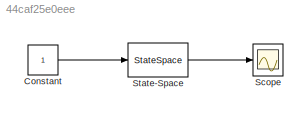
MODEL slx_44caf25e0eee
KIND model
CONFIG AbsTol = auto
CONFIG EnableMultiTasking = off
CONFIG FixedStep = auto
CONFIG MaxStep = auto
CONFIG MinStep = auto
CONFIG RelTol = 1e-3
CONFIG SampleTimeConstraint = Unconstrained
CONFIG Solver = VariableStepAuto
CONFIG SolverName = VariableStepAuto
CONFIG StartTime = 0.0
CONFIG StopTime = 10.0
BLOCK [Constant] Constant
BLOCK [Scope] Scope
  Floating = off
  NumInputPorts = 1
  Ports = [1]
  ScopeSpecificationString = Simulink.scopes.TimeScopeBlockCfg('CurrentConfiguration', extmgr.ConfigurationSet(extmgr.Configuration('Core','General UI',true),extmgr.Configuration('Core','Source UI',true),extmgr.Configuration('Sources','WiredSimulink',true),extmgr.Configuration('Visuals','Time Domain',true,'SerializedDisplays',{struct('MinYLimReal','-0.11757','MaxYLimReal','1.05812','YLabelReal','','MinYLimMag','0.00000','MaxY...<+1357ch>
BLOCK [StateSpace] State-Space
  A = [0 1 0 0 0;0 0 1 0 0;0 0 0 1 0;0 0 0 0 1;-65.25 -192.25 -181.25 -65.25 -12]
  B = [0;0;0;0;1]
  C = [22.5 83.75 107.5 53.75 7.5]
  D = 0
  InitialCondition = 0
  Ports = [1, 1]
LINE Constant:1 -> State-Space:1
LINE State-Space:1 -> Scope:1
